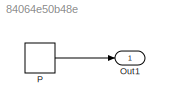
MODEL slx_84064e50b48e
KIND model
CONFIG AbsTol = auto
CONFIG EnableMultiTasking = off
CONFIG FixedStep = auto
CONFIG MaxStep = auto
CONFIG MinStep = auto
CONFIG RelTol = 1e-3
CONFIG SampleTimeConstraint = Unconstrained
CONFIG Solver = FixedStepDiscrete
CONFIG SolverName = FixedStepDiscrete
CONFIG StartTime = 0.0
CONFIG StopTime = 10.0
BLOCK [Outport] Out1
  IconDisplay = Port number
BLOCK [DiscretePulseGenerator] P
  Period = 10
  PhaseDelay = 2
  Ports = [0, 1]
  PulseType = Time based
  PulseWidth = 4
  SampleTime = 0.1
  VectorParams1D = off
LINE P:1 -> Out1:1
